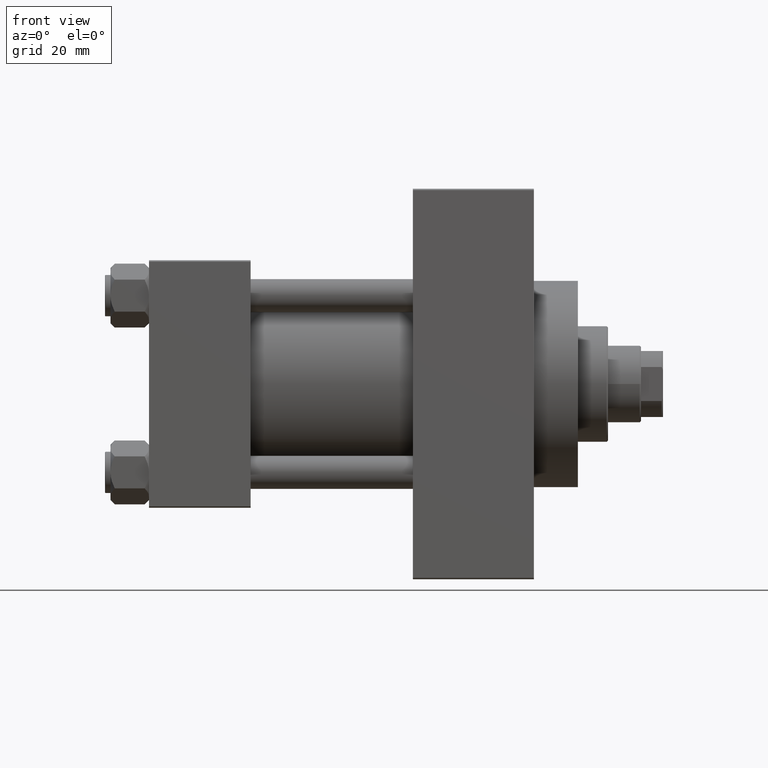
[diagram: clean part render]
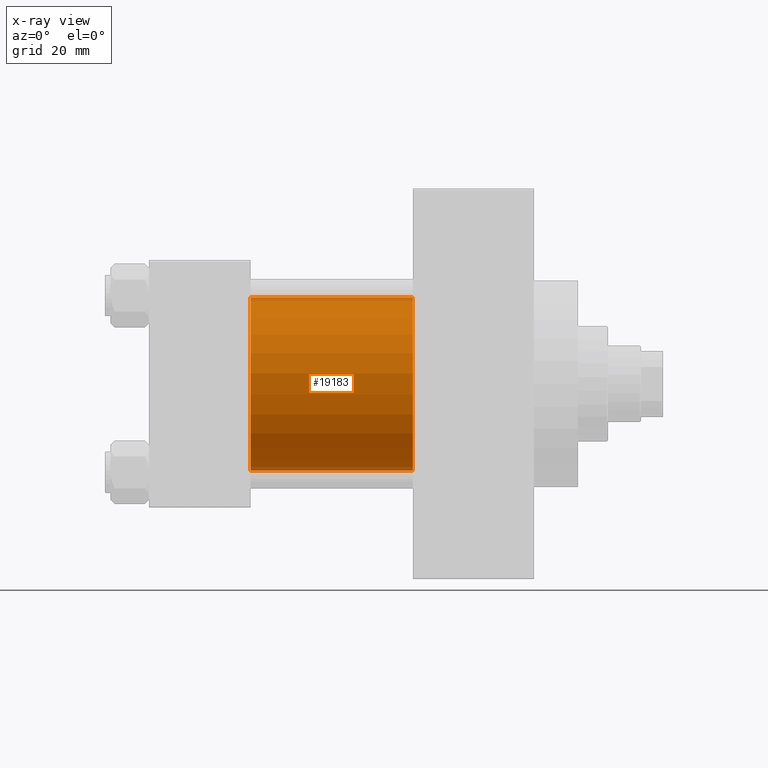
[diagram: x-ray — body ghosted, one internal face saturated and labeled with its STEP entity id]
A machine part, front view, then the same camera in x-ray: the body is ghosted and one INTERNAL B-rep face — a face not visible from any outside direction — is saturated and labeled: STEP entity #19183.
In plain terms, the highlighted cylindrical surface (partial cylindrical patch) has radius 31.5 mm, axis along (-1, -0, -0).
Its self-contained STEP definition (entity closure, byte-faithful):
#334 = EDGE_CURVE ( 'NONE', #28624, #6290, #47849, .T. ) ;
#679 = CARTESIAN_POINT ( 'NONE',  ( 96.00000000000000000, 1.255552203348951850E-15, -31.50000000000000000 ) ) ;
#6127 = DIRECTION ( 'NONE',  ( 1.000000000000000000, 0.000000000000000000, 0.000000000000000000 ) ) ;
#6290 = VERTEX_POINT ( 'NONE', #46418 ) ;
#6340 = ORIENTED_EDGE ( 'NONE', *, *, #45388, .T. ) ;
#7538 = CARTESIAN_POINT ( 'NONE',  ( 96.00000000000000000, -2.602085213965210642E-15, 0.000000000000000000 ) ) ;
#10796 = VERTEX_POINT ( 'NONE', #16766 ) ;
#11644 = DIRECTION ( 'NONE',  ( 0.000000000000000000, 0.000000000000000000, -1.000000000000000000 ) ) ;
#11961 = LINE ( 'NONE', #38864, #44670 ) ;
#13611 = DIRECTION ( 'NONE',  ( 0.000000000000000000, 0.000000000000000000, -1.000000000000000000 ) ) ;
#14647 = DIRECTION ( 'NONE',  ( 1.000000000000000000, 0.000000000000000000, 0.000000000000000000 ) ) ;
#15485 = ORIENTED_EDGE ( 'NONE', *, *, #46582, .F. ) ;
#16766 = CARTESIAN_POINT ( 'NONE',  ( 96.00000000000000000, -2.602085213965210642E-15, 31.50000000000000000 ) ) ;
#17184 = EDGE_CURVE ( 'NONE', #27721, #6290, #34294, .T. ) ;
#18778 = DIRECTION ( 'NONE',  ( 0.000000000000000000, 0.000000000000000000, 1.000000000000000000 ) ) ;
#19183 = ADVANCED_FACE ( 'NONE', ( #45417 ), #34708, .F. ) ;
#19288 = ORIENTED_EDGE ( 'NONE', *, *, #334, .T. ) ;
#19533 = VECTOR ( 'NONE', #40122, 1000.000000000000000 ) ;
#24779 = ORIENTED_EDGE ( 'NONE', *, *, #17184, .F. ) ;
#24933 = CARTESIAN_POINT ( 'NONE',  ( 96.00000000000000000, 1.255552203348951850E-15, -31.50000000000000000 ) ) ;
#25712 = EDGE_LOOP ( 'NONE', ( #6340, #19288, #24779, #15485 ) ) ;
#26669 = DIRECTION ( 'NONE',  ( -1.000000000000000000, -0.000000000000000000, -0.000000000000000000 ) ) ;
#27721 = VERTEX_POINT ( 'NONE', #32069 ) ;
#27937 = AXIS2_PLACEMENT_3D ( 'NONE', #30908, #6127, #13611 ) ;
#28624 = VERTEX_POINT ( 'NONE', #679 ) ;
#30908 = CARTESIAN_POINT ( 'NONE',  ( 37.00000000000000000, -2.602085213965210642E-15, 0.000000000000000000 ) ) ;
#32069 = CARTESIAN_POINT ( 'NONE',  ( 37.00000000000000000, -2.602085213965210642E-15, 31.50000000000000000 ) ) ;
#32772 = AXIS2_PLACEMENT_3D ( 'NONE', #7538, #33972, #18778 ) ;
#33972 = DIRECTION ( 'NONE',  ( -1.000000000000000000, -0.000000000000000000, -0.000000000000000000 ) ) ;
#34285 = AXIS2_PLACEMENT_3D ( 'NONE', #38293, #14647, #11644 ) ;
#34294 = CIRCLE ( 'NONE', #27937, 31.50000000000000000 ) ;
#34708 = CYLINDRICAL_SURFACE ( 'NONE', #32772, 31.50000000000000000 ) ;
#35078 = CIRCLE ( 'NONE', #34285, 31.50000000000000000 ) ;
#38293 = CARTESIAN_POINT ( 'NONE',  ( 96.00000000000000000, -2.602085213965210642E-15, 0.000000000000000000 ) ) ;
#38864 = CARTESIAN_POINT ( 'NONE',  ( 96.00000000000000000, -2.602085213965210642E-15, 31.50000000000000000 ) ) ;
#40122 = DIRECTION ( 'NONE',  ( -1.000000000000000000, -0.000000000000000000, -0.000000000000000000 ) ) ;
#44670 = VECTOR ( 'NONE', #26669, 1000.000000000000000 ) ;
#45388 = EDGE_CURVE ( 'NONE', #10796, #28624, #35078, .T. ) ;
#45417 = FACE_OUTER_BOUND ( 'NONE', #25712, .T. ) ;
#46418 = CARTESIAN_POINT ( 'NONE',  ( 37.00000000000000000, 1.255552203348951850E-15, -31.50000000000000000 ) ) ;
#46582 = EDGE_CURVE ( 'NONE', #10796, #27721, #11961, .T. ) ;
#47849 = LINE ( 'NONE', #24933, #19533 ) ;